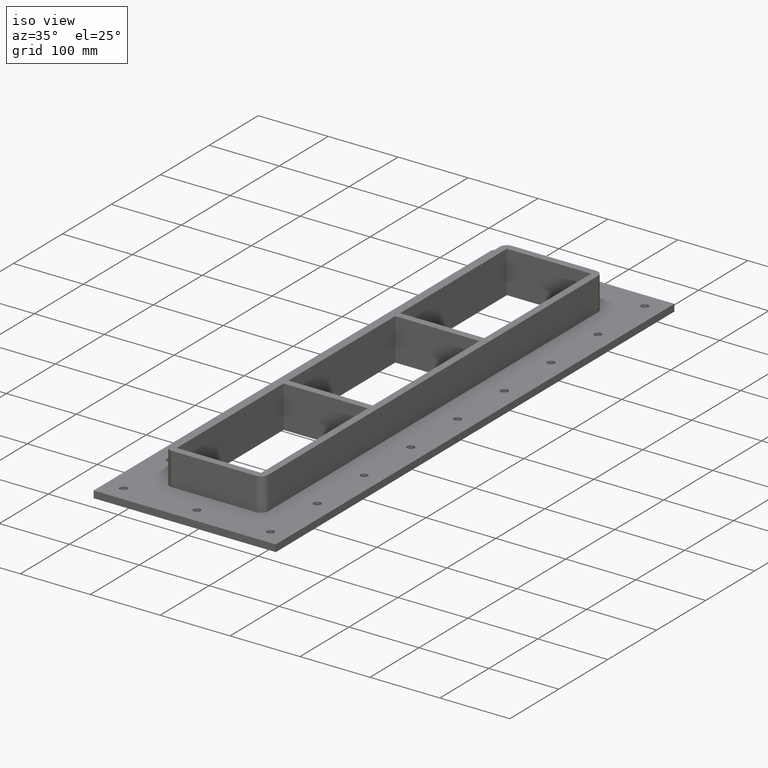
[diagram: clean part render]
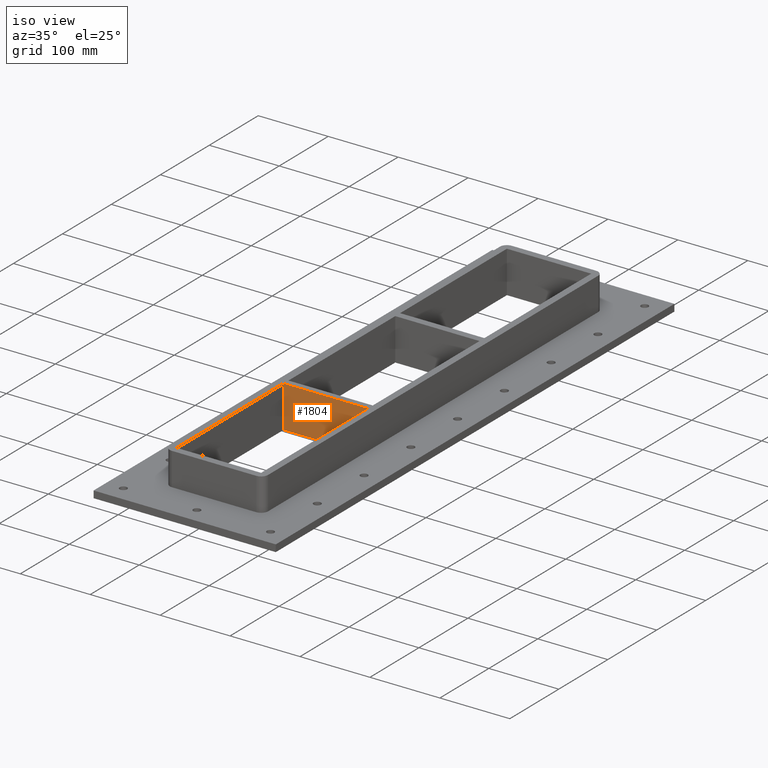
[diagram: same view with one face highlighted and labeled with its STEP entity id]
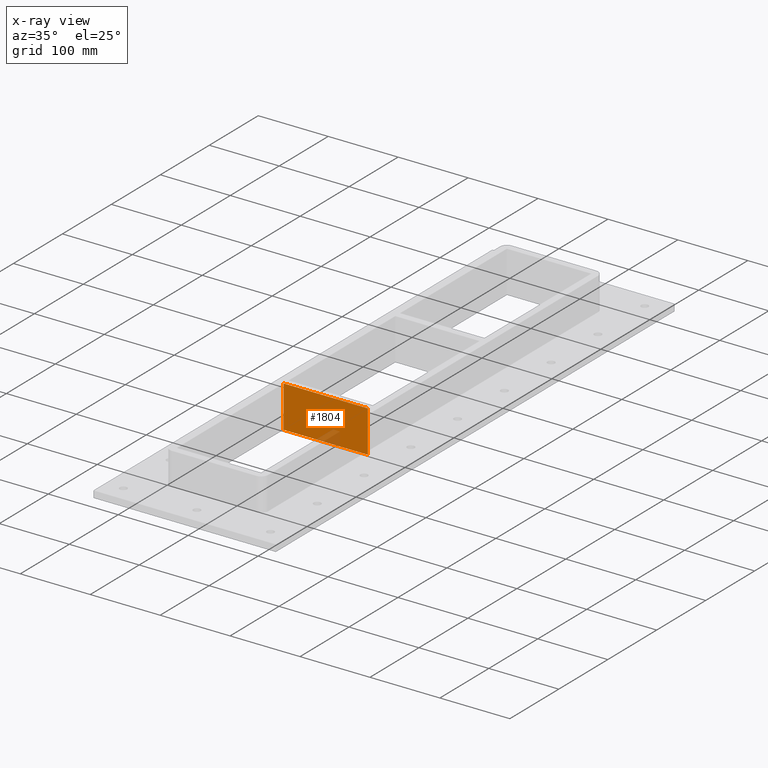
[diagram: x-ray of the same camera — body ghosted, the highlighted face saturated]
A machine part, iso view. The second image highlights one B-rep face of the part: STEP entity #1804.
The next image is the same camera in x-ray: the body ghosted, the highlighted face saturated — about 6% of this face is hidden behind the body in this view.
In plain terms, the highlighted planar face has unit normal (0, 1, 0).
Its self-contained STEP definition (entity closure, byte-faithful):
#1376=CARTESIAN_POINT('',(60.250000000000057,-118.99999999999994,-30.0));
#1377=VERTEX_POINT('',#1376);
#1384=CARTESIAN_POINT('',(-60.249999999999986,-118.99999999999994,-30.0));
#1385=VERTEX_POINT('',#1384);
#1386=CARTESIAN_POINT('',(60.250000000000057,-118.99999999999994,-30.0));
#1387=DIRECTION('',(-1.0,0.0,0.0));
#1388=VECTOR('',#1387,120.50000000000004);
#1389=LINE('',#1386,#1388);
#1390=EDGE_CURVE('',#1377,#1385,#1389,.T.);
#1715=CARTESIAN_POINT('',(-60.249999999999986,-118.99999999999994,30.0));
#1716=VERTEX_POINT('',#1715);
#1717=CARTESIAN_POINT('',(-60.249999999999986,-118.99999999999994,30.0));
#1718=DIRECTION('',(0.0,0.0,-1.0));
#1719=VECTOR('',#1718,60.0);
#1720=LINE('',#1717,#1719);
#1721=EDGE_CURVE('',#1716,#1385,#1720,.T.);
#1771=CARTESIAN_POINT('',(60.250000000000057,-118.99999999999994,30.0));
#1772=VERTEX_POINT('',#1771);
#1779=CARTESIAN_POINT('',(60.250000000000057,-118.99999999999994,30.0));
#1780=DIRECTION('',(0.0,0.0,-1.0));
#1781=VECTOR('',#1780,60.0);
#1782=LINE('',#1779,#1781);
#1783=EDGE_CURVE('',#1772,#1377,#1782,.T.);
#1788=CARTESIAN_POINT('',(-60.249999999999986,-118.99999999999994,30.0));
#1789=DIRECTION('',(0.0,1.0,0.0));
#1790=DIRECTION('',(1.0,0.0,0.0));
#1791=AXIS2_PLACEMENT_3D('',#1788,#1789,#1790);
#1792=PLANE('',#1791);
#1793=ORIENTED_EDGE('',*,*,#1390,.F.);
#1794=ORIENTED_EDGE('',*,*,#1783,.F.);
#1795=CARTESIAN_POINT('',(-60.249999999999986,-118.99999999999994,30.0));
#1796=DIRECTION('',(1.0,0.0,0.0));
#1797=VECTOR('',#1796,120.50000000000004);
#1798=LINE('',#1795,#1797);
#1799=EDGE_CURVE('',#1716,#1772,#1798,.T.);
#1800=ORIENTED_EDGE('',*,*,#1799,.F.);
#1801=ORIENTED_EDGE('',*,*,#1721,.T.);
#1802=EDGE_LOOP('',(#1793,#1794,#1800,#1801));
#1803=FACE_OUTER_BOUND('',#1802,.T.);
#1804=ADVANCED_FACE('',(#1803),#1792,.F.);